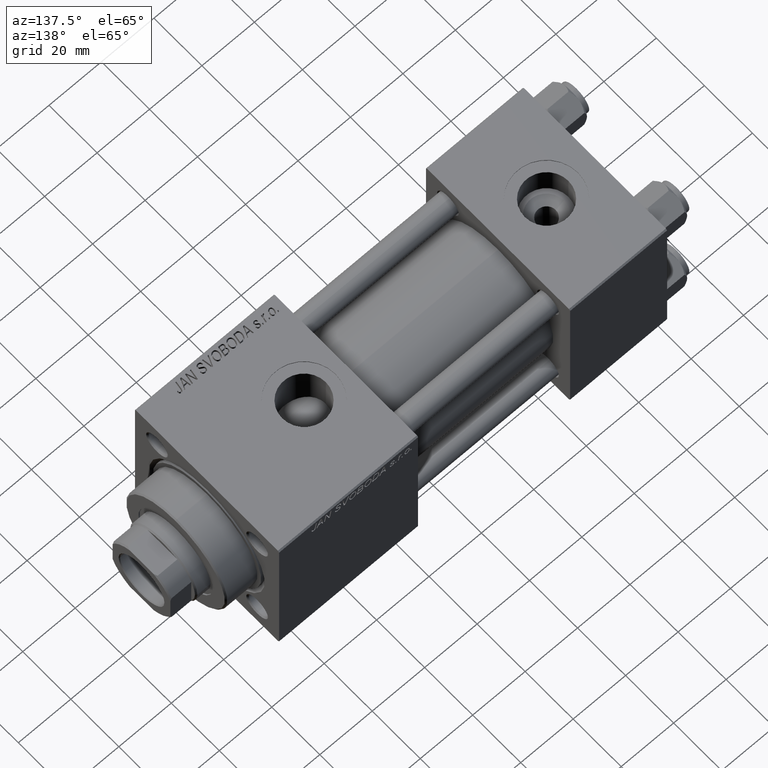
[diagram: clean part render]
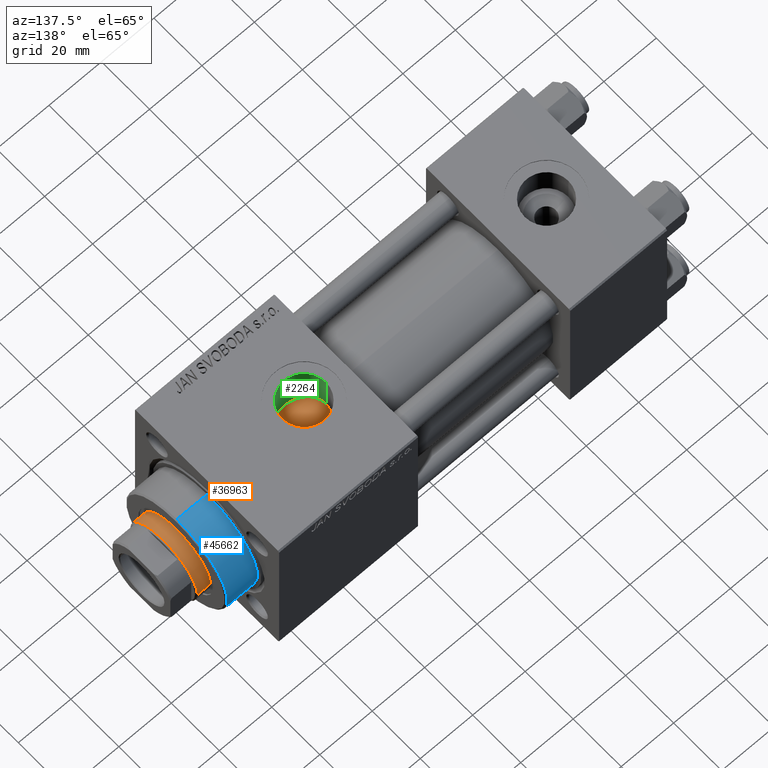
[diagram: same view with three faces highlighted in distinct colors, each labeled with its STEP entity id]
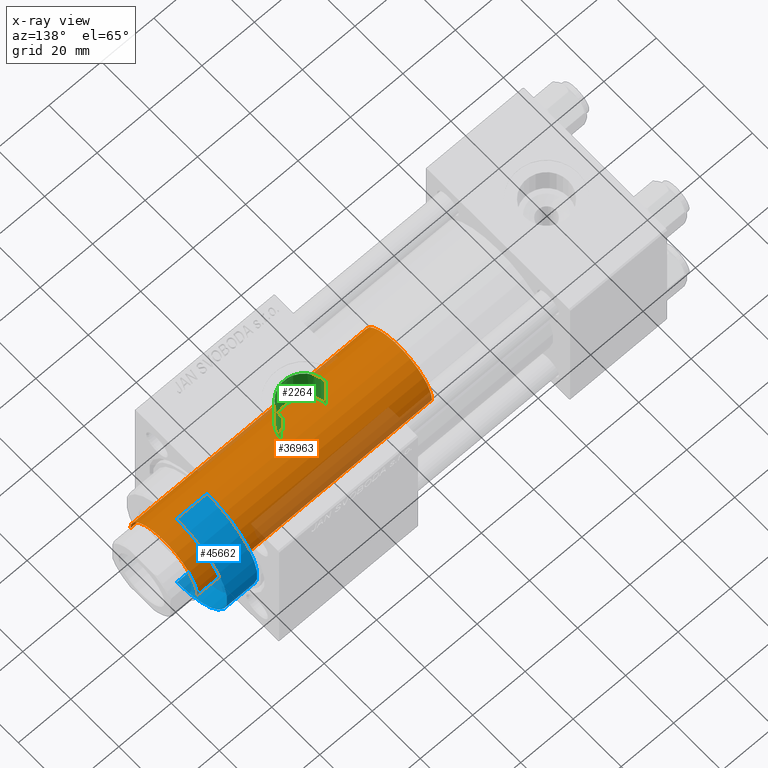
[diagram: x-ray of the same camera — body ghosted, the three highlighted faces saturated]
A machine part, auxiliary view with three faces highlighted in distinct colors.
The next image is the same camera in x-ray (body ghosted, the three faces saturated) — at least one of them is partly hidden behind the body in this view.
Their STEP definitions:

[orange] entity #36963 — the highlighted cylindrical surface (partial cylindrical patch) has radius 14 mm, axis along (-1, 0, 0).
#138 = ORIENTED_EDGE ( 'NONE', *, *, #38138, .T. ) ;
#4653 = ORIENTED_EDGE ( 'NONE', *, *, #27550, .T. ) ;
#4836 = CARTESIAN_POINT ( 'NONE',  ( 14.00000000000000178, 1.714505518806294441E-15, 38.00000000000000000 ) ) ;
#4876 = FACE_OUTER_BOUND ( 'NONE', #32954, .T. ) ;
#5254 = VERTEX_POINT ( 'NONE', #22363 ) ;
#6019 = CARTESIAN_POINT ( 'NONE',  ( 0.000000000000000000, 0.000000000000000000, 38.00000000000000000 ) ) ;
#9332 = DIRECTION ( 'NONE',  ( -1.000000000000000000, 0.000000000000000000, 0.000000000000000000 ) ) ;
#9645 = EDGE_CURVE ( 'NONE', #5254, #28610, #45153, .T. ) ;
#9934 = CIRCLE ( 'NONE', #44335, 14.00000000000000178 ) ;
#14089 = DIRECTION ( 'NONE',  ( 1.000000000000000000, 0.000000000000000000, 0.000000000000000000 ) ) ;
#14374 = CIRCLE ( 'NONE', #15203, 14.00000000000000178 ) ;
#15097 = DIRECTION ( 'NONE',  ( -0.000000000000000000, -0.000000000000000000, -1.000000000000000000 ) ) ;
#15203 = AXIS2_PLACEMENT_3D ( 'NONE', #21700, #50852, #14089 ) ;
#20889 = DIRECTION ( 'NONE',  ( -0.000000000000000000, -0.000000000000000000, -1.000000000000000000 ) ) ;
#21700 = CARTESIAN_POINT ( 'NONE',  ( 0.000000000000000000, 0.000000000000000000, 127.5000000000000853 ) ) ;
#22363 = CARTESIAN_POINT ( 'NONE',  ( 14.00000000000000178, 1.714505518806294441E-15, 127.5000000000000853 ) ) ;
#24679 = CARTESIAN_POINT ( 'NONE',  ( -14.00000000000000178, 0.000000000000000000, 38.00000000000000000 ) ) ;
#25951 = DIRECTION ( 'NONE',  ( -0.000000000000000000, -0.000000000000000000, -1.000000000000000000 ) ) ;
#27550 = EDGE_CURVE ( 'NONE', #38181, #28262, #30084, .T. ) ;
#28262 = VERTEX_POINT ( 'NONE', #24679 ) ;
#28610 = VERTEX_POINT ( 'NONE', #4836 ) ;
#28661 = ORIENTED_EDGE ( 'NONE', *, *, #9645, .F. ) ;
#29309 = CARTESIAN_POINT ( 'NONE',  ( 0.000000000000000000, 0.000000000000000000, 128.0000000000000000 ) ) ;
#30084 = LINE ( 'NONE', #38769, #40724 ) ;
#30119 = VECTOR ( 'NONE', #25951, 1000.000000000000000 ) ;
#32954 = EDGE_LOOP ( 'NONE', ( #28661, #40658, #4653, #138 ) ) ;
#33862 = CARTESIAN_POINT ( 'NONE',  ( 14.00000000000000178, 1.714505518806294441E-15, 128.0000000000000000 ) ) ;
#36963 = ADVANCED_FACE ( 'NONE', ( #4876 ), #49259, .T. ) ;
#38138 = EDGE_CURVE ( 'NONE', #28262, #28610, #9934, .T. ) ;
#38181 = VERTEX_POINT ( 'NONE', #50150 ) ;
#38769 = CARTESIAN_POINT ( 'NONE',  ( -14.00000000000000178, 0.000000000000000000, 128.0000000000000000 ) ) ;
#40658 = ORIENTED_EDGE ( 'NONE', *, *, #42609, .T. ) ;
#40724 = VECTOR ( 'NONE', #15097, 1000.000000000000000 ) ;
#41760 = DIRECTION ( 'NONE',  ( 1.000000000000000000, 0.000000000000000000, 0.000000000000000000 ) ) ;
#42609 = EDGE_CURVE ( 'NONE', #5254, #38181, #14374, .T. ) ;
#44335 = AXIS2_PLACEMENT_3D ( 'NONE', #6019, #45444, #41760 ) ;
#45153 = LINE ( 'NONE', #33862, #30119 ) ;
#45444 = DIRECTION ( 'NONE',  ( 0.000000000000000000, 0.000000000000000000, 1.000000000000000000 ) ) ;
#47625 = AXIS2_PLACEMENT_3D ( 'NONE', #29309, #20889, #9332 ) ;
#49259 = CYLINDRICAL_SURFACE ( 'NONE', #47625, 14.00000000000000178 ) ;
#50150 = CARTESIAN_POINT ( 'NONE',  ( -14.00000000000000178, 0.000000000000000000, 127.5000000000000853 ) ) ;
#50852 = DIRECTION ( 'NONE',  ( 0.000000000000000000, 0.000000000000000000, -1.000000000000000000 ) ) ;

[blue] entity #45662 — the highlighted cylindrical surface (partial cylindrical patch) has radius 21 mm, axis along (-1, -0, -0).
#788 = AXIS2_PLACEMENT_3D ( 'NONE', #37568, #40475, #32591 ) ;
#2931 = ORIENTED_EDGE ( 'NONE', *, *, #30458, .T. ) ;
#3188 = EDGE_LOOP ( 'NONE', ( #2931, #32324, #43895, #35711 ) ) ;
#3812 = DIRECTION ( 'NONE',  ( -0.000000000000000000, -0.000000000000000000, -1.000000000000000000 ) ) ;
#4286 = VECTOR ( 'NONE', #32292, 1000.000000000000000 ) ;
#4424 = CARTESIAN_POINT ( 'NONE',  ( -21.00000000000000000, 0.000000000000000000, 40.70000000000000284 ) ) ;
#4854 = VERTEX_POINT ( 'NONE', #29403 ) ;
#7715 = VERTEX_POINT ( 'NONE', #44433 ) ;
#12557 = VERTEX_POINT ( 'NONE', #23043 ) ;
#12689 = VERTEX_POINT ( 'NONE', #49543 ) ;
#16117 = VECTOR ( 'NONE', #3812, 1000.000000000000000 ) ;
#18195 = DIRECTION ( 'NONE',  ( 0.000000000000000000, 0.000000000000000000, -1.000000000000000000 ) ) ;
#20126 = FACE_OUTER_BOUND ( 'NONE', #3188, .T. ) ;
#20348 = LINE ( 'NONE', #27450, #16117 ) ;
#23043 = CARTESIAN_POINT ( 'NONE',  ( 21.00000000000000000, 2.571758278209441661E-15, 40.19999999999998863 ) ) ;
#27450 = CARTESIAN_POINT ( 'NONE',  ( 21.00000000000000000, 2.571758278209441661E-15, 40.70000000000000284 ) ) ;
#29403 = CARTESIAN_POINT ( 'NONE',  ( -21.00000000000000000, 0.000000000000000000, 40.19999999999998863 ) ) ;
#30458 = EDGE_CURVE ( 'NONE', #4854, #12557, #30724, .T. ) ;
#30608 = AXIS2_PLACEMENT_3D ( 'NONE', #41870, #18195, #50264 ) ;
#30724 = CIRCLE ( 'NONE', #30608, 21.00000000000000000 ) ;
#32292 = DIRECTION ( 'NONE',  ( -0.000000000000000000, -0.000000000000000000, -1.000000000000000000 ) ) ;
#32324 = ORIENTED_EDGE ( 'NONE', *, *, #47009, .T. ) ;
#32591 = DIRECTION ( 'NONE',  ( 1.000000000000000000, 0.000000000000000000, 0.000000000000000000 ) ) ;
#35711 = ORIENTED_EDGE ( 'NONE', *, *, #44592, .F. ) ;
#36175 = DIRECTION ( 'NONE',  ( -0.000000000000000000, -0.000000000000000000, -1.000000000000000000 ) ) ;
#37568 = CARTESIAN_POINT ( 'NONE',  ( 0.000000000000000000, 0.000000000000000000, 28.69999999999999929 ) ) ;
#37893 = AXIS2_PLACEMENT_3D ( 'NONE', #50424, #36175, #51659 ) ;
#40475 = DIRECTION ( 'NONE',  ( 0.000000000000000000, 0.000000000000000000, 1.000000000000000000 ) ) ;
#40938 = LINE ( 'NONE', #4424, #4286 ) ;
#41442 = EDGE_CURVE ( 'NONE', #12689, #7715, #47773, .T. ) ;
#41870 = CARTESIAN_POINT ( 'NONE',  ( 0.000000000000000000, 0.000000000000000000, 40.19999999999998863 ) ) ;
#43895 = ORIENTED_EDGE ( 'NONE', *, *, #41442, .T. ) ;
#44433 = CARTESIAN_POINT ( 'NONE',  ( -21.00000000000000000, 0.000000000000000000, 28.69999999999999929 ) ) ;
#44592 = EDGE_CURVE ( 'NONE', #4854, #7715, #40938, .T. ) ;
#45662 = ADVANCED_FACE ( 'NONE', ( #20126 ), #47717, .T. ) ;
#47009 = EDGE_CURVE ( 'NONE', #12557, #12689, #20348, .T. ) ;
#47717 = CYLINDRICAL_SURFACE ( 'NONE', #37893, 21.00000000000000000 ) ;
#47773 = CIRCLE ( 'NONE', #788, 21.00000000000000000 ) ;
#49543 = CARTESIAN_POINT ( 'NONE',  ( 21.00000000000000000, 2.571758278209441661E-15, 28.69999999999999929 ) ) ;
#50264 = DIRECTION ( 'NONE',  ( 1.000000000000000000, 0.000000000000000000, 0.000000000000000000 ) ) ;
#50424 = CARTESIAN_POINT ( 'NONE',  ( 0.000000000000000000, 0.000000000000000000, 40.70000000000000284 ) ) ;
#51659 = DIRECTION ( 'NONE',  ( -1.000000000000000000, 0.000000000000000000, 0.000000000000000000 ) ) ;

[green] entity #2264 — the highlighted cylindrical surface (edge-blend (fillet) strip) has radius 8.33 mm, axis along (0, 0, -1).
#1 = DIRECTION ( 'NONE',  ( 0.000000000000000000, 0.000000000000000000, -1.000000000000000000 ) ) ;
#40 = DIRECTION ( 'NONE',  ( -0.000000000000000000, -0.000000000000000000, -1.000000000000000000 ) ) ;
#1360 = EDGE_CURVE ( 'NONE', #19261, #49651, #11557, .T. ) ;
#1497 = CARTESIAN_POINT ( 'NONE',  ( 119.2999999999999829, -0.7063285354565423946, 52.79999999999999716 ) ) ;
#2264 = ADVANCED_FACE ( 'NONE', ( #7902 ), #47557, .F. ) ;
#2811 = CARTESIAN_POINT ( 'NONE',  ( 119.1551794102610558, -1.779571906496714817, 15.40624408871749473 ) ) ;
#3072 = CARTESIAN_POINT ( 'NONE',  ( 118.1826768078772147, -4.251812843369906503, 14.91336181654766158 ) ) ;
#3330 = CARTESIAN_POINT ( 'NONE',  ( 116.1223761457300157, -6.589288648760240008, 14.03465761673831835 ) ) ;
#3366 = EDGE_CURVE ( 'NONE', #37716, #19261, #14077, .T. ) ;
#3591 = CARTESIAN_POINT ( 'NONE',  ( 104.3099837884075214, -4.990735798376637611, 14.68174191680505736 ) ) ;
#4410 = ORIENTED_EDGE ( 'NONE', *, *, #43271, .T. ) ;
#5478 = CARTESIAN_POINT ( 'NONE',  ( 119.2999999999999829, -0.7063285354565423946, 22.48891060056044111 ) ) ;
#5638 = AXIS2_PLACEMENT_3D ( 'NONE', #36015, #1, #44154 ) ;
#6289 = VERTEX_POINT ( 'NONE', #5478 ) ;
#6391 = ORIENTED_EDGE ( 'NONE', *, *, #48307, .T. ) ;
#6485 = CARTESIAN_POINT ( 'NONE',  ( 103.0868517190840805, -2.655488600773495023, 15.27904856166878744 ) ) ;
#7128 = ORIENTED_EDGE ( 'NONE', *, *, #25589, .T. ) ;
#7276 = CARTESIAN_POINT ( 'NONE',  ( 118.6531198785858123, -3.300037631644541225, 15.14675668077579473 ) ) ;
#7438 = CARTESIAN_POINT ( 'NONE',  ( 119.3200361445783102, -0.4708856903043605602, 22.49630535626710781 ) ) ;
#7538 = CARTESIAN_POINT ( 'NONE',  ( 104.6334646112960627, -5.396965728881647273, 14.53569325099344844 ) ) ;
#7625 = DIRECTION ( 'NONE',  ( 0.000000000000000000, 0.000000000000000000, -1.000000000000000000 ) ) ;
#7902 = FACE_OUTER_BOUND ( 'NONE', #17836, .T. ) ;
#10430 = CARTESIAN_POINT ( 'NONE',  ( 110.1189832292043604, -8.287746620742311165, 13.09829097645578777 ) ) ;
#10680 = CARTESIAN_POINT ( 'NONE',  ( 103.7370422418972993, -4.112566756246510913, 14.95151444490774040 ) ) ;
#10942 = CARTESIAN_POINT ( 'NONE',  ( 119.2999999999999545, -0.7063285354568877850, 15.48389808801386103 ) ) ;
#11557 = LINE ( 'NONE', #48076, #29985 ) ;
#11994 = CARTESIAN_POINT ( 'NONE',  ( 102.7359107352509255, -1.080522372059881997, 15.46466209025531491 ) ) ;
#13456 = VECTOR ( 'NONE', #17505, 1000.000000000000000 ) ;
#14055 = CARTESIAN_POINT ( 'NONE',  ( 119.3300000000000125, -2.449316168263869821E-15, 29.79999999999999716 ) ) ;
#14077 = CIRCLE ( 'NONE', #18260, 8.330000000000003624 ) ;
#14632 = CARTESIAN_POINT ( 'NONE',  ( 108.0280831876511911, -7.800005974199668124, 13.39679247833317888 ) ) ;
#14794 = CARTESIAN_POINT ( 'NONE',  ( 119.3300000000000125, 2.755455270027974659E-15, 22.50000000000000355 ) ) ;
#14890 = CARTESIAN_POINT ( 'NONE',  ( 118.5428030552849066, -3.544712500972458713, 15.09119218508022087 ) ) ;
#15152 = CARTESIAN_POINT ( 'NONE',  ( 106.6049117619710103, -7.095324458822745761, 13.78473450686057866 ) ) ;
#15579 = CARTESIAN_POINT ( 'NONE',  ( 119.3300000000000125, -0.2354428451521790588, 22.50000000000000355 ) ) ;
#15597 = ORIENTED_EDGE ( 'NONE', *, *, #3366, .F. ) ;
#16328 = CARTESIAN_POINT ( 'NONE',  ( 111.0000000000000000, -3.469446951953613794E-15, 29.79999999999999716 ) ) ;
#17505 = DIRECTION ( 'NONE',  ( -0.000000000000000000, -0.000000000000000000, 1.000000000000000000 ) ) ;
#17836 = EDGE_LOOP ( 'NONE', ( #15597, #4410, #6391, #39250, #7128, #36823 ) ) ;
#18260 = AXIS2_PLACEMENT_3D ( 'NONE', #16328, #40, #32373 ) ;
#18557 = CARTESIAN_POINT ( 'NONE',  ( 119.2536282029345216, -1.251239149034838016, 15.45904091616633202 ) ) ;
#18832 = CARTESIAN_POINT ( 'NONE',  ( 114.7954698068906652, -7.433815927027513482, 13.60442864644455341 ) ) ;
#19261 = VERTEX_POINT ( 'NONE', #22548 ) ;
#19348 = CARTESIAN_POINT ( 'NONE',  ( 111.7336049828112436, -8.315414581110550429, 13.08103420916272874 ) ) ;
#19609 = CARTESIAN_POINT ( 'NONE',  ( 103.4869951611570968, -3.636522200691657325, 15.07569736173248209 ) ) ;
#20390 = CARTESIAN_POINT ( 'NONE',  ( 102.6830689054504546, -0.5397750835096103428, 15.49296437165992657 ) ) ;
#22494 = CARTESIAN_POINT ( 'NONE',  ( 117.9019425821535521, -4.693185279177808589, 14.77889678387125016 ) ) ;
#22548 = CARTESIAN_POINT ( 'NONE',  ( 102.6700000000000017, -3.469446951953613794E-15, 29.79999999999999716 ) ) ;
#23136 = DIRECTION ( 'NONE',  ( 0.000000000000000000, 0.000000000000000000, -1.000000000000000000 ) ) ;
#23594 = VECTOR ( 'NONE', #23136, 1000.000000000000000 ) ;
#24070 = CARTESIAN_POINT ( 'NONE',  ( 102.6700000000000017, 1.898304232322969090E-15, 15.50000000000000000 ) ) ;
#25463 = B_SPLINE_CURVE_WITH_KNOTS ( 'NONE', 3,
 ( #31614, #15579, #7438, #36598 ),
 .UNSPECIFIED., .F., .F.,
 ( 4, 4 ),
 ( 0.0007063285354565328363, 0.001412657070913077816 ),
 .UNSPECIFIED. ) ;
#25589 = EDGE_CURVE ( 'NONE', #27043, #49651, #33729, .T. ) ;
#26451 = CARTESIAN_POINT ( 'NONE',  ( 107.0592140932513274, -7.358164796621699644, 13.64446967569029567 ) ) ;
#26705 = CARTESIAN_POINT ( 'NONE',  ( 102.9331782841941845, -2.146294661946247739, 15.35990957131595458 ) ) ;
#26966 = CARTESIAN_POINT ( 'NONE',  ( 116.8918120434205150, -5.894370187512604886, 14.33695445255749235 ) ) ;
#27043 = VERTEX_POINT ( 'NONE', #30532 ) ;
#27236 = CARTESIAN_POINT ( 'NONE',  ( 113.5758055966575029, -7.926129927251753138, 13.32055475116625409 ) ) ;
#27495 = CARTESIAN_POINT ( 'NONE',  ( 112.8051925787937506, -8.136430990711659206, 13.19297154944903383 ) ) ;
#27602 = LINE ( 'NONE', #51251, #23594 ) ;
#29985 = VECTOR ( 'NONE', #7625, 1000.000000000000000 ) ;
#30532 = CARTESIAN_POINT ( 'NONE',  ( 119.2999999999999545, -0.7063285354568877850, 15.48389808801386103 ) ) ;
#31186 = CARTESIAN_POINT ( 'NONE',  ( 105.9674296848606758, -6.643042862437807727, 14.00528882879479475 ) ) ;
#31614 = CARTESIAN_POINT ( 'NONE',  ( 119.3300000000000125, 2.755455270027974659E-15, 22.50000000000000355 ) ) ;
#32373 = DIRECTION ( 'NONE',  ( 1.000000000000000000, 0.000000000000000000, 0.000000000000000000 ) ) ;
#33729 = B_SPLINE_CURVE_WITH_KNOTS ( 'NONE', 3,
 ( #10942, #18557, #2811, #39087, #51139, #7276, #14890, #3072, #22494, #47462, #46415, #26966, #43006, #3330, #46673, #18832, #34620, #27236, #39344, #27495, #34880, #19348, #50875, #35661, #10430, #35396, #50620, #35136, #14632, #26451, #15152, #31186, #43265, #43523, #42485, #7538, #3591, #10680, #19609, #6485, #26705, #47981, #11994, #20390, #51918, #24070 ),
 .UNSPECIFIED., .F., .F.,
 ( 4, 2, 2, 2, 2, 2, 2, 2, 2, 2, 2, 2, 2, 2, 2, 2, 2, 2, 2, 2, 2, 2, 4 ),
 ( 0.000000000000000000, 0.001616601094056645998, 0.002424901641084967804, 0.003233202188113289827, 0.004849803282169933005, 0.005658103829198244186, 0.006466404376226554500, 0.008083005470283203750, 0.009699606564339852133, 0.01050790711136817719, 0.01131620765839650052, 0.01293280875245319053, 0.01374110929948153641, 0.01454940984650988055, 0.01616601094056653587, 0.01778261203462318599, 0.01859091258165149196, 0.01939921312867980141, 0.02101581422273642030, 0.02263241531679303573, 0.02424901641084965462, 0.02505731695787796406, 0.02586561750490627698 ),
 .UNSPECIFIED. ) ;
#34620 = CARTESIAN_POINT ( 'NONE',  ( 114.3193855547532962, -7.658212580014177817, 13.47756053925515829 ) ) ;
#34880 = CARTESIAN_POINT ( 'NONE',  ( 112.5393180270790765, -8.191046880170269162, 13.15899482924553254 ) ) ;
#34984 = CARTESIAN_POINT ( 'NONE',  ( 102.6700000000000017, 1.898304232322969090E-15, 15.50000000000000000 ) ) ;
#35136 = CARTESIAN_POINT ( 'NONE',  ( 108.5303836912680850, -7.973572890763239052, 13.29262183476801873 ) ) ;
#35396 = CARTESIAN_POINT ( 'NONE',  ( 109.5800126393433942, -8.212586102782990949, 13.14554677668086136 ) ) ;
#35661 = CARTESIAN_POINT ( 'NONE',  ( 110.3883139045844075, -8.311878257887807209, 13.08292216006755204 ) ) ;
#36015 = CARTESIAN_POINT ( 'NONE',  ( 111.0000000000000000, -3.469446951953613794E-15, 52.79999999999999716 ) ) ;
#36598 = CARTESIAN_POINT ( 'NONE',  ( 119.2999999999999829, -0.7063285354565423946, 22.48891060056044111 ) ) ;
#36823 = ORIENTED_EDGE ( 'NONE', *, *, #1360, .F. ) ;
#37520 = LINE ( 'NONE', #1497, #13456 ) ;
#37716 = VERTEX_POINT ( 'NONE', #14055 ) ;
#39087 = CARTESIAN_POINT ( 'NONE',  ( 118.9348013750803830, -2.549325201696793108, 15.29111667893739401 ) ) ;
#39250 = ORIENTED_EDGE ( 'NONE', *, *, #43453, .F. ) ;
#39344 = CARTESIAN_POINT ( 'NONE',  ( 113.3226885743374908, -8.004083164222320690, 13.27368299574001220 ) ) ;
#42485 = CARTESIAN_POINT ( 'NONE',  ( 105.1746853513074740, -5.960066042193976621, 14.30973504695705856 ) ) ;
#43006 = CARTESIAN_POINT ( 'NONE',  ( 116.7052856138598429, -6.075010833985379222, 14.26111244594537553 ) ) ;
#43265 = CARTESIAN_POINT ( 'NONE',  ( 105.7620717625424760, -6.482401235301948006, 14.08060569368233139 ) ) ;
#43271 = EDGE_CURVE ( 'NONE', #37716, #48227, #27602, .T. ) ;
#43453 = EDGE_CURVE ( 'NONE', #27043, #6289, #37520, .T. ) ;
#43523 = CARTESIAN_POINT ( 'NONE',  ( 105.3654057549137093, -6.140746346287156321, 14.23292720374008447 ) ) ;
#44154 = DIRECTION ( 'NONE',  ( -1.000000000000000000, 0.000000000000000000, 0.000000000000000000 ) ) ;
#46415 = CARTESIAN_POINT ( 'NONE',  ( 117.2493350041374356, -5.513878949387196471, 14.48754643870556613 ) ) ;
#46673 = CARTESIAN_POINT ( 'NONE',  ( 115.7029727236499212, -6.895596990293974216, 13.88498614261381725 ) ) ;
#47462 = CARTESIAN_POINT ( 'NONE',  ( 117.4206836242459815, -5.313397845573794243, 14.56247739527531770 ) ) ;
#47557 = CYLINDRICAL_SURFACE ( 'NONE', #5638, 8.330000000000003624 ) ;
#47981 = CARTESIAN_POINT ( 'NONE',  ( 102.7760409420187244, -1.352117138147101105, 15.44320659540804463 ) ) ;
#48076 = CARTESIAN_POINT ( 'NONE',  ( 102.6700000000000017, -3.469446951953613794E-15, 52.79999999999999716 ) ) ;
#48227 = VERTEX_POINT ( 'NONE', #14794 ) ;
#48307 = EDGE_CURVE ( 'NONE', #48227, #6289, #25463, .T. ) ;
#49651 = VERTEX_POINT ( 'NONE', #34984 ) ;
#50620 = CARTESIAN_POINT ( 'NONE',  ( 109.3130088921947447, -8.161798413422935994, 13.17727064419120708 ) ) ;
#50875 = CARTESIAN_POINT ( 'NONE',  ( 111.1958509774288899, -8.345110101594285013, 13.06176967618121232 ) ) ;
#51139 = CARTESIAN_POINT ( 'NONE',  ( 118.8491258789661060, -2.802091215935003987, 15.24672985051142149 ) ) ;
#51251 = CARTESIAN_POINT ( 'NONE',  ( 119.3300000000000125, -2.449316168263869032E-15, 52.79999999999999716 ) ) ;
#51918 = CARTESIAN_POINT ( 'NONE',  ( 102.6700000000000017, -0.2697275728529904271, 15.50000000000000178 ) ) ;